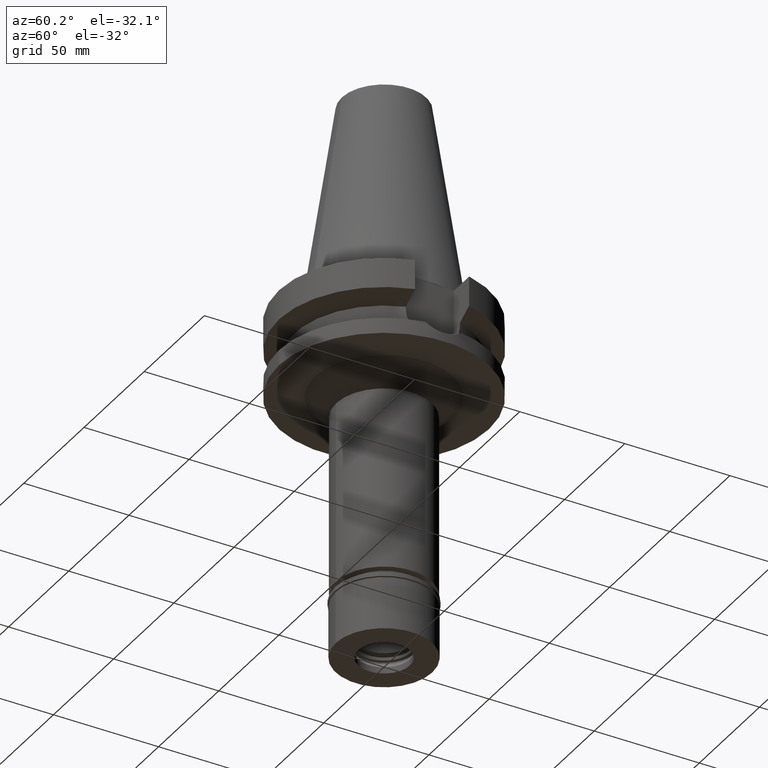
[diagram: clean part render]
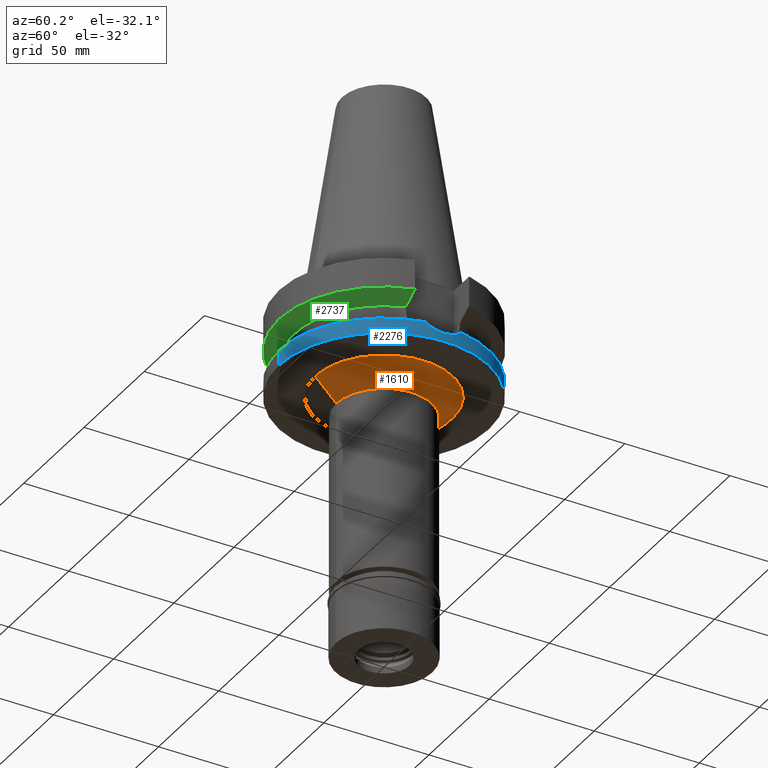
[diagram: same view with three faces highlighted in distinct colors, each labeled with its STEP entity id]
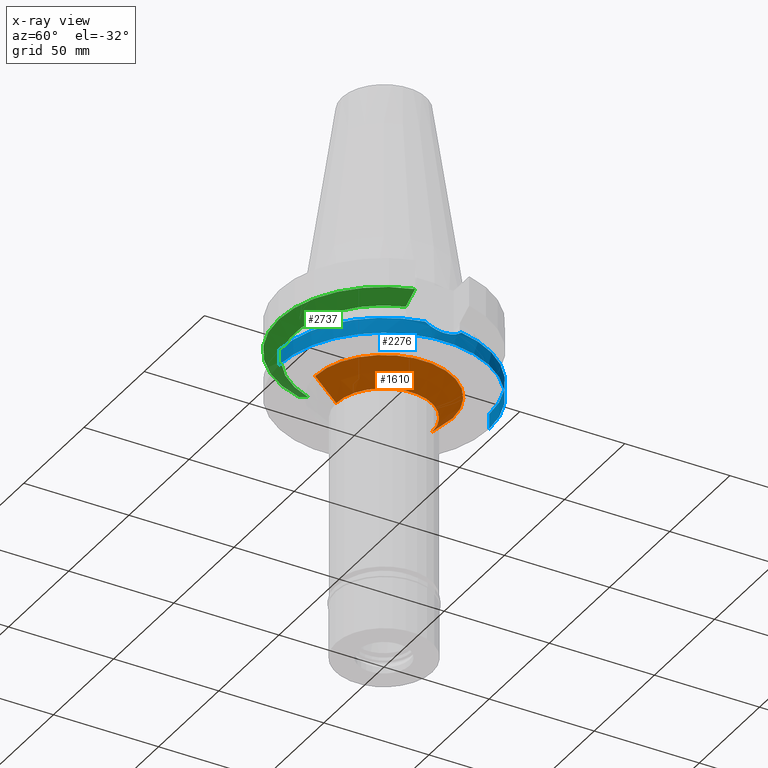
[diagram: x-ray of the same camera — body ghosted, the three highlighted faces saturated]
A machine part, auxiliary view with three faces highlighted in distinct colors.
The next image is the same camera in x-ray (body ghosted, the three faces saturated) — at least one of them is partly hidden behind the body in this view.
Their STEP definitions:

[orange] entity #1610 — the highlighted conical surface has half-angle 45 deg.
#116 = ORIENTED_EDGE ( 'NONE', *, *, #225, .T. ) ;
#134 = VERTEX_POINT ( 'NONE', #2916 ) ;
#153 = DIRECTION ( 'NONE',  ( 0.0000000000000000000, 1.000000000000000000, 0.0000000000000000000 ) ) ;
#216 = LINE ( 'NONE', #1446, #2823 ) ;
#225 = EDGE_CURVE ( 'NONE', #134, #3012, #1730, .T. ) ;
#261 = CARTESIAN_POINT ( 'NONE',  ( 0.0000000000000000000, 0.0000000000000000000, -43.00000000000000000 ) ) ;
#264 = LINE ( 'NONE', #2698, #2621 ) ;
#411 = VERTEX_POINT ( 'NONE', #1642 ) ;
#419 = AXIS2_PLACEMENT_3D ( 'NONE', #492, #543, #2494 ) ;
#431 = DIRECTION ( 'NONE',  ( 0.0000000000000000000, 1.000000000000000000, 0.0000000000000000000 ) ) ;
#433 = CIRCLE ( 'NONE', #2833, 22.75000000000000000 ) ;
#492 = CARTESIAN_POINT ( 'NONE',  ( 0.0000000000000000000, 0.0000000000000000000, -38.00000000000000000 ) ) ;
#543 = DIRECTION ( 'NONE',  ( 0.0000000000000000000, 0.0000000000000000000, -1.000000000000000000 ) ) ;
#567 = ORIENTED_EDGE ( 'NONE', *, *, #2104, .F. ) ;
#740 = ORIENTED_EDGE ( 'NONE', *, *, #924, .T. ) ;
#924 = EDGE_CURVE ( 'NONE', #3012, #1999, #216, .T. ) ;
#1002 = DIRECTION ( 'NONE',  ( 0.0000000000000000000, -0.7071067811865474617, -0.7071067811865474617 ) ) ;
#1421 = FACE_OUTER_BOUND ( 'NONE', #1701, .T. ) ;
#1446 = CARTESIAN_POINT ( 'NONE',  ( 0.0000000000000000000, -32.75000000000000000, -38.00000000000000000 ) ) ;
#1610 = ADVANCED_FACE ( 'NONE', ( #1421 ), #2979, .T. ) ;
#1633 = DIRECTION ( 'NONE',  ( 0.0000000000000000000, 0.0000000000000000000, 1.000000000000000000 ) ) ;
#1642 = CARTESIAN_POINT ( 'NONE',  ( 0.0000000000000000000, 22.75000000000000000, -48.00000000000000000 ) ) ;
#1701 = EDGE_LOOP ( 'NONE', ( #116, #740, #2911, #567 ) ) ;
#1730 = CIRCLE ( 'NONE', #419, 32.75000000000000000 ) ;
#1858 = CARTESIAN_POINT ( 'NONE',  ( 0.0000000000000000000, -32.75000000000000000, -38.00000000000000000 ) ) ;
#1950 = AXIS2_PLACEMENT_3D ( 'NONE', #261, #1633, #431 ) ;
#1999 = VERTEX_POINT ( 'NONE', #2597 ) ;
#2104 = EDGE_CURVE ( 'NONE', #134, #411, #264, .T. ) ;
#2380 = DIRECTION ( 'NONE',  ( 0.0000000000000000000, 0.7071067811865474617, -0.7071067811865474617 ) ) ;
#2494 = DIRECTION ( 'NONE',  ( 0.0000000000000000000, 1.000000000000000000, 0.0000000000000000000 ) ) ;
#2597 = CARTESIAN_POINT ( 'NONE',  ( 0.0000000000000000000, -22.75000000000000000, -48.00000000000000000 ) ) ;
#2621 = VECTOR ( 'NONE', #1002, 1000.000000000000114 ) ;
#2650 = EDGE_CURVE ( 'NONE', #411, #1999, #433, .T. ) ;
#2698 = CARTESIAN_POINT ( 'NONE',  ( 0.0000000000000000000, 32.75000000000000000, -38.00000000000000000 ) ) ;
#2767 = CARTESIAN_POINT ( 'NONE',  ( 0.0000000000000000000, 0.0000000000000000000, -48.00000000000000000 ) ) ;
#2823 = VECTOR ( 'NONE', #2380, 1000.000000000000114 ) ;
#2833 = AXIS2_PLACEMENT_3D ( 'NONE', #2767, #3026, #153 ) ;
#2911 = ORIENTED_EDGE ( 'NONE', *, *, #2650, .F. ) ;
#2916 = CARTESIAN_POINT ( 'NONE',  ( 0.0000000000000000000, 32.75000000000000000, -38.00000000000000000 ) ) ;
#2979 = CONICAL_SURFACE ( 'NONE', #1950, 27.75000000000000000, 0.7853981633972997312 ) ;
#3012 = VERTEX_POINT ( 'NONE', #1858 ) ;
#3026 = DIRECTION ( 'NONE',  ( 0.0000000000000000000, 0.0000000000000000000, -1.000000000000000000 ) ) ;

[blue] entity #2276 — the highlighted cylindrical surface (partial cylindrical patch) has radius 50 mm, axis along (0, 0, -1).
#16 = CARTESIAN_POINT ( 'NONE',  ( 49.79170874925394230, 4.559128567761622897, -33.16402800635662373 ) ) ;
#43 = DIRECTION ( 'NONE',  ( 0.0000000000000000000, -1.000000000000000000, 0.0000000000000000000 ) ) ;
#68 = ORIENTED_EDGE ( 'NONE', *, *, #1461, .F. ) ;
#85 = CIRCLE ( 'NONE', #1853, 50.00000000000000000 ) ;
#117 = CARTESIAN_POINT ( 'NONE',  ( 49.78849615495508374, -4.594160771139691235, -33.15068097419369764 ) ) ;
#135 = CARTESIAN_POINT ( 'NONE',  ( 49.38719230601036259, -7.838125007984846349, -31.37801139017194174 ) ) ;
#157 = ORIENTED_EDGE ( 'NONE', *, *, #186, .F. ) ;
#186 = EDGE_CURVE ( 'NONE', #2498, #1146, #2965, .T. ) ;
#212 = CARTESIAN_POINT ( 'NONE',  ( 49.79509525718310670, 4.521911686826532772, -33.17809616900485992 ) ) ;
#219 = CARTESIAN_POINT ( 'NONE',  ( 0.0000000000000000000, 0.0000000000000000000, -30.73730776426999967 ) ) ;
#228 = CARTESIAN_POINT ( 'NONE',  ( 49.26250064874000145, 8.556052234130000045, -30.73730776426999967 ) ) ;
#246 = CARTESIAN_POINT ( 'NONE',  ( 49.86956621714998761, 3.608177968276175207, -33.48463145065603186 ) ) ;
#299 = CARTESIAN_POINT ( 'NONE',  ( 0.0000000000000000000, 2.627969566289999846E-14, -38.00000000000000000 ) ) ;
#415 = CARTESIAN_POINT ( 'NONE',  ( 49.26250064874000145, -8.556052234130000045, -30.73730776426999967 ) ) ;
#443 = ORIENTED_EDGE ( 'NONE', *, *, #2854, .T. ) ;
#450 = EDGE_CURVE ( 'NONE', #1769, #1710, #723, .T. ) ;
#452 = DIRECTION ( 'NONE',  ( 0.9852500129747439050, -0.1711210446826074982, 0.0000000000000000000 ) ) ;
#465 = VECTOR ( 'NONE', #2235, 1000.000000000000000 ) ;
#476 = CARTESIAN_POINT ( 'NONE',  ( 49.79052572487673700, -4.572062755416284041, -33.15911172841194343 ) ) ;
#505 = CARTESIAN_POINT ( 'NONE',  ( 50.00000025975000995, 0.7410749815768149507, -34.00000000000000000 ) ) ;
#611 = ORIENTED_EDGE ( 'NONE', *, *, #2697, .T. ) ;
#614 = CARTESIAN_POINT ( 'NONE',  ( 49.73403571957985037, -5.148397096556246666, -32.92466732337943114 ) ) ;
#692 = CARTESIAN_POINT ( 'NONE',  ( 49.79347438492521150, 4.539752812120092962, -33.17136368398146828 ) ) ;
#702 = DIRECTION ( 'NONE',  ( 0.0000000000000000000, 0.0000000000000000000, -1.000000000000000000 ) ) ;
#723 = CIRCLE ( 'NONE', #1941, 50.00000000000000000 ) ;
#754 = CARTESIAN_POINT ( 'NONE',  ( 0.0000000000000000000, -50.00000000000000000, -30.73730776426999967 ) ) ;
#819 = CARTESIAN_POINT ( 'NONE',  ( 49.26250064874000145, 8.556052234130000045, -30.73730776426999967 ) ) ;
#896 = CARTESIAN_POINT ( 'NONE',  ( 49.91305551306805910, -3.031270826510757743, -33.66153124146348574 ) ) ;
#901 = EDGE_CURVE ( 'NONE', #1710, #989, #1137, .T. ) ;
#907 = CARTESIAN_POINT ( 'NONE',  ( 49.79885500147745603, 4.480269389557914650, -33.19370440294834168 ) ) ;
#940 = CARTESIAN_POINT ( 'NONE',  ( 49.86088866505890138, -3.802344464246394384, -33.45151161010782914 ) ) ;
#970 = CARTESIAN_POINT ( 'NONE',  ( 49.84837068522751480, 3.895670753407296072, -33.39815263645106569 ) ) ;
#989 = VERTEX_POINT ( 'NONE', #2437 ) ;
#1036 = CARTESIAN_POINT ( 'NONE',  ( 0.0000000000000000000, 50.00000000000000000, -38.00000000000000000 ) ) ;
#1095 = CARTESIAN_POINT ( 'NONE',  ( 49.77979861139803575, -4.687619708195339463, -33.11458520028098462 ) ) ;
#1126 = CARTESIAN_POINT ( 'NONE',  ( 0.0000000000000000000, 2.627969566289999846E-14, 114.5900000000000034 ) ) ;
#1137 = LINE ( 'NONE', #2666, #2206 ) ;
#1146 = VERTEX_POINT ( 'NONE', #1036 ) ;
#1165 = CARTESIAN_POINT ( 'NONE',  ( 0.0000000000000000000, 0.0000000000000000000, -30.73730776426999967 ) ) ;
#1178 = CARTESIAN_POINT ( 'NONE',  ( 49.93043543702999898, 2.648726358659863056, -33.73005955321882254 ) ) ;
#1189 = CYLINDRICAL_SURFACE ( 'NONE', #2049, 50.00000000000000000 ) ;
#1197 = CARTESIAN_POINT ( 'NONE',  ( 50.00000025975000995, -0.7410656247493322413, -34.00000000000000000 ) ) ;
#1200 = DIRECTION ( 'NONE',  ( 0.0000000000000000000, 0.0000000000000000000, 1.000000000000000000 ) ) ;
#1204 = ORIENTED_EDGE ( 'NONE', *, *, #3123, .F. ) ;
#1208 = CARTESIAN_POINT ( 'NONE',  ( 49.90869642992999644, 3.032807478770089382, -33.64331436784424056 ) ) ;
#1289 = AXIS2_PLACEMENT_3D ( 'NONE', #299, #1200, #43 ) ;
#1293 = VERTEX_POINT ( 'NONE', #2222 ) ;
#1308 = CARTESIAN_POINT ( 'NONE',  ( 49.75680721492278735, -4.924372200127893784, -33.01927248169111095 ) ) ;
#1367 = VERTEX_POINT ( 'NONE', #819 ) ;
#1458 = CARTESIAN_POINT ( 'NONE',  ( 49.38719044870591546, 7.838135701642514164, -31.37800184677395166 ) ) ;
#1461 = EDGE_CURVE ( 'NONE', #1769, #1293, #2665, .T. ) ;
#1472 = CARTESIAN_POINT ( 'NONE',  ( 49.80628532616982795, 4.396934166523706722, -33.22451764731415125 ) ) ;
#1669 = DIRECTION ( 'NONE',  ( 0.0000000000000000000, -1.000000000000000000, 0.0000000000000000000 ) ) ;
#1674 = CARTESIAN_POINT ( 'NONE',  ( 49.98260905406999655, 1.500665618722017536, -33.93573820485751469 ) ) ;
#1698 = CARTESIAN_POINT ( 'NONE',  ( 0.0000000000000000000, 50.00000000000000000, -30.73730776426999967 ) ) ;
#1710 = VERTEX_POINT ( 'NONE', #754 ) ;
#1712 = CARTESIAN_POINT ( 'NONE',  ( 49.26250064874000145, -8.556052234130000045, -30.73730776426999967 ) ) ;
#1769 = VERTEX_POINT ( 'NONE', #1712 ) ;
#1824 = CARTESIAN_POINT ( 'NONE',  ( 49.49360748622665795, -7.117022365875340206, -31.87769826632497328 ) ) ;
#1853 = AXIS2_PLACEMENT_3D ( 'NONE', #1165, #2149, #2101 ) ;
#1905 = CIRCLE ( 'NONE', #1289, 50.00000000000000000 ) ;
#1914 = FACE_OUTER_BOUND ( 'NONE', #2127, .T. ) ;
#1941 = AXIS2_PLACEMENT_3D ( 'NONE', #219, #2132, #452 ) ;
#1954 = CARTESIAN_POINT ( 'NONE',  ( 49.73972721060592050, 5.127761864445225193, -32.94800215654207420 ) ) ;
#2048 = CARTESIAN_POINT ( 'NONE',  ( 49.78971523551724232, -4.580896941065764061, -33.15574468995074398 ) ) ;
#2049 = AXIS2_PLACEMENT_3D ( 'NONE', #1126, #702, #1669 ) ;
#2064 = CARTESIAN_POINT ( 'NONE',  ( 49.66531577328759539, -5.772453008276194453, -32.63570655766052653 ) ) ;
#2079 = CARTESIAN_POINT ( 'NONE',  ( 49.78562820798312316, -4.625197376671674299, -33.13877319680133837 ) ) ;
#2101 = DIRECTION ( 'NONE',  ( 0.0000000000000000000, 1.000000000000000000, 0.0000000000000000000 ) ) ;
#2113 = CARTESIAN_POINT ( 'NONE',  ( 49.98261131041360272, -1.500624885998198765, -33.93573978232370081 ) ) ;
#2127 = EDGE_LOOP ( 'NONE', ( #2169, #2552, #443, #157, #611, #1204, #68 ) ) ;
#2132 = DIRECTION ( 'NONE',  ( 0.0000000000000000000, 0.0000000000000000000, -1.000000000000000000 ) ) ;
#2141 = B_SPLINE_CURVE_WITH_KNOTS ( 'NONE', 3,
 ( #3005, #505, #1674, #1178, #1208, #246, #970, #2680, #1472, #907, #212, #692, #2143, #16, #1954, #3125, #2163, #1458, #228 ),
 .UNSPECIFIED., .F., .F.,
 ( 4, 2, 2, 1, 1, 1, 1, 1, 2, 2, 2, 4 ),
 ( 0.0000000000000000000, 0.2499999999999922284, 0.3749999999999883427, 0.4374999999999867328, 0.4687499999999858447, 0.4843749999999854561, 0.4921874999999847344, 0.4960937499999846789, 0.4980468749999847344, 0.4999999999999847899, 0.7499999999999924505, 1.000000000000000000 ),
 .UNSPECIFIED. ) ;
#2143 = CARTESIAN_POINT ( 'NONE',  ( 49.79239168047005393, 4.551645640488826139, -33.16686574698744039 ) ) ;
#2149 = DIRECTION ( 'NONE',  ( 0.0000000000000000000, 0.0000000000000000000, -1.000000000000000000 ) ) ;
#2163 = CARTESIAN_POINT ( 'NONE',  ( 49.49360244392637043, 7.117060693444199337, -31.87766899445430013 ) ) ;
#2169 = ORIENTED_EDGE ( 'NONE', *, *, #450, .T. ) ;
#2206 = VECTOR ( 'NONE', #3116, 1000.000000000000000 ) ;
#2222 = CARTESIAN_POINT ( 'NONE',  ( 50.00000025974999573, 1.773227332824999718E-14, -34.00000114470000057 ) ) ;
#2235 = DIRECTION ( 'NONE',  ( 0.0000000000000000000, 2.152361642122000014E-14, -1.000000000000000000 ) ) ;
#2276 = ADVANCED_FACE ( 'NONE', ( #1914 ), #1189, .T. ) ;
#2300 = CARTESIAN_POINT ( 'NONE',  ( 49.76776460766329535, -4.813848196929806811, -33.06469792026251042 ) ) ;
#2436 = CARTESIAN_POINT ( 'NONE',  ( 50.00000025974999573, 1.773227332824999718E-14, -34.00000114470000057 ) ) ;
#2437 = CARTESIAN_POINT ( 'NONE',  ( 0.0000000000000000000, -50.00000000000000000, -38.00000000000000000 ) ) ;
#2498 = VERTEX_POINT ( 'NONE', #2800 ) ;
#2544 = CARTESIAN_POINT ( 'NONE',  ( 49.62581554097000236, -6.100699782641695990, -32.46623685349931776 ) ) ;
#2552 = ORIENTED_EDGE ( 'NONE', *, *, #901, .T. ) ;
#2647 = CARTESIAN_POINT ( 'NONE',  ( 49.79078946304657904, -4.569185635713363780, -33.16020745294903094 ) ) ;
#2665 = B_SPLINE_CURVE_WITH_KNOTS ( 'NONE', 3,
 ( #415, #135, #1824, #2544, #2064, #3052, #614, #1308, #2300, #1095, #2079, #117, #2048, #476, #2647, #940, #896, #2113, #1197, #2436 ),
 .UNSPECIFIED., .F., .F.,
 ( 4, 2, 2, 2, 1, 1, 1, 1, 2, 2, 2, 4 ),
 ( 0.0000000000000000000, 0.2499999999999806821, 0.3749999999999703570, 0.4374999999999658606, 0.4687499999999640843, 0.4843749999999629741, 0.4921874999999624190, 0.4960937499999618638, 0.4980468749999622524, 0.4999999999999625855, 0.7499999999999813483, 1.000000000000000000 ),
 .UNSPECIFIED. ) ;
#2666 = CARTESIAN_POINT ( 'NONE',  ( 0.0000000000000000000, -50.00000000000000000, -30.73730776426999967 ) ) ;
#2680 = CARTESIAN_POINT ( 'NONE',  ( 49.82078931996937854, 4.230072290406152291, -33.28453423724595694 ) ) ;
#2697 = EDGE_CURVE ( 'NONE', #2498, #1367, #85, .T. ) ;
#2800 = CARTESIAN_POINT ( 'NONE',  ( 0.0000000000000000000, 50.00000000000000000, -30.73730776426999967 ) ) ;
#2854 = EDGE_CURVE ( 'NONE', #989, #1146, #1905, .T. ) ;
#2965 = LINE ( 'NONE', #1698, #465 ) ;
#3005 = CARTESIAN_POINT ( 'NONE',  ( 50.00000025974999573, 1.773227332824999718E-14, -34.00000114470000057 ) ) ;
#3052 = CARTESIAN_POINT ( 'NONE',  ( 49.71771244286869518, -5.301720186653763989, -32.85659238539503235 ) ) ;
#3116 = DIRECTION ( 'NONE',  ( 0.0000000000000000000, -2.250196262218000018E-14, -1.000000000000000000 ) ) ;
#3123 = EDGE_CURVE ( 'NONE', #1293, #1367, #2141, .T. ) ;
#3125 = CARTESIAN_POINT ( 'NONE',  ( 49.66987082487638361, 5.762061219988904526, -32.66234491603881196 ) ) ;

[green] entity #2737 — the highlighted conical surface has half-angle 60 deg.
#57 = DIRECTION ( 'NONE',  ( 0.0000000000000000000, -1.000000000000000000, 0.0000000000000000000 ) ) ;
#66 = CARTESIAN_POINT ( 'NONE',  ( 45.51179445209620411, -12.85000771148890308, -17.22986957481731451 ) ) ;
#169 = DIRECTION ( 'NONE',  ( 0.0000000000000000000, 1.000000000000000000, 0.0000000000000000000 ) ) ;
#283 = EDGE_CURVE ( 'NONE', #2371, #1056, #1317, .T. ) ;
#375 = CIRCLE ( 'NONE', #2874, 50.00000000000000000 ) ;
#406 = DIRECTION ( 'NONE',  ( 0.9531960443486575674, -0.3023529411764863672, 0.0000000000000000000 ) ) ;
#410 = EDGE_CURVE ( 'NONE', #2371, #2819, #2354, .T. ) ;
#546 = CARTESIAN_POINT ( 'NONE',  ( -48.32056912814000071, -12.85000385727999905, -15.66265768250999990 ) ) ;
#626 = ORIENTED_EDGE ( 'NONE', *, *, #410, .F. ) ;
#667 = CARTESIAN_POINT ( 'NONE',  ( 0.0000000000000000000, 1.006319759053999930E-14, -19.99281925464999787 ) ) ;
#680 = CONICAL_SURFACE ( 'NONE', #2479, 46.25000000000000000, 1.047197551196400456 ) ;
#930 = CARTESIAN_POINT ( 'NONE',  ( 48.32057015392000210, -12.84999999999999964, -15.66269223573000069 ) ) ;
#983 = CARTESIAN_POINT ( 'NONE',  ( -45.51179901536024630, -12.85000770991706176, -17.22986705878139446 ) ) ;
#1056 = VERTEX_POINT ( 'NONE', #930 ) ;
#1106 = VERTEX_POINT ( 'NONE', #546 ) ;
#1121 = DIRECTION ( 'NONE',  ( 0.0000000000000000000, 0.0000000000000000000, 1.000000000000000000 ) ) ;
#1186 = CARTESIAN_POINT ( 'NONE',  ( 0.0000000000000000000, 1.006319759053999930E-14, -17.82775574519000017 ) ) ;
#1254 = EDGE_CURVE ( 'NONE', #1106, #1056, #375, .T. ) ;
#1259 = CARTESIAN_POINT ( 'NONE',  ( 40.51083188481999997, -12.84999999999999964, -19.99281925464999787 ) ) ;
#1317 = B_SPLINE_CURVE_WITH_KNOTS ( 'NONE', 3,
 ( #1259, #2251, #66, #1995 ),
 .UNSPECIFIED., .F., .F.,
 ( 4, 4 ),
 ( 0.0000000000000000000, 1.000000000000000000 ),
 .UNSPECIFIED. ) ;
#1483 = CARTESIAN_POINT ( 'NONE',  ( 40.51083188481999997, -12.84999999999999964, -19.99281925464999787 ) ) ;
#1607 = FACE_OUTER_BOUND ( 'NONE', #1953, .T. ) ;
#1772 = CARTESIAN_POINT ( 'NONE',  ( 0.0000000000000000000, 1.006319759053999930E-14, -15.66269223573000069 ) ) ;
#1953 = EDGE_LOOP ( 'NONE', ( #2449, #626, #2963, #2765 ) ) ;
#1974 = CARTESIAN_POINT ( 'NONE',  ( -48.32056912814000071, -12.85000385727999905, -15.66265768250999990 ) ) ;
#1984 = DIRECTION ( 'NONE',  ( 0.0000000000000000000, 0.0000000000000000000, 1.000000000000000000 ) ) ;
#1995 = CARTESIAN_POINT ( 'NONE',  ( 48.32057015392000210, -12.84999999999999964, -15.66269223573000069 ) ) ;
#2090 = AXIS2_PLACEMENT_3D ( 'NONE', #667, #2840, #406 ) ;
#2207 = CARTESIAN_POINT ( 'NONE',  ( -40.51083297203000200, -12.84999657244999938, -19.99284555869999735 ) ) ;
#2251 = CARTESIAN_POINT ( 'NONE',  ( 42.90862839512466564, -12.84999314235032486, -18.67324584512087071 ) ) ;
#2354 = CIRCLE ( 'NONE', #2090, 42.50000000000002132 ) ;
#2371 = VERTEX_POINT ( 'NONE', #1483 ) ;
#2381 = CARTESIAN_POINT ( 'NONE',  ( -40.51083297203000200, -12.84999657244999938, -19.99284555869999735 ) ) ;
#2449 = ORIENTED_EDGE ( 'NONE', *, *, #2452, .T. ) ;
#2452 = EDGE_CURVE ( 'NONE', #1106, #2819, #2934, .T. ) ;
#2479 = AXIS2_PLACEMENT_3D ( 'NONE', #1186, #1121, #169 ) ;
#2719 = CARTESIAN_POINT ( 'NONE',  ( -42.90862489405132152, -12.84999313793018416, -18.67324780319469113 ) ) ;
#2737 = ADVANCED_FACE ( 'NONE', ( #1607 ), #680, .T. ) ;
#2765 = ORIENTED_EDGE ( 'NONE', *, *, #1254, .F. ) ;
#2819 = VERTEX_POINT ( 'NONE', #2381 ) ;
#2840 = DIRECTION ( 'NONE',  ( 0.0000000000000000000, 0.0000000000000000000, -1.000000000000000000 ) ) ;
#2874 = AXIS2_PLACEMENT_3D ( 'NONE', #1772, #1984, #57 ) ;
#2934 = B_SPLINE_CURVE_WITH_KNOTS ( 'NONE', 3,
 ( #1974, #983, #2719, #2207 ),
 .UNSPECIFIED., .F., .F.,
 ( 4, 4 ),
 ( 0.0000000000000000000, 1.000000000000000000 ),
 .UNSPECIFIED. ) ;
#2963 = ORIENTED_EDGE ( 'NONE', *, *, #283, .T. ) ;